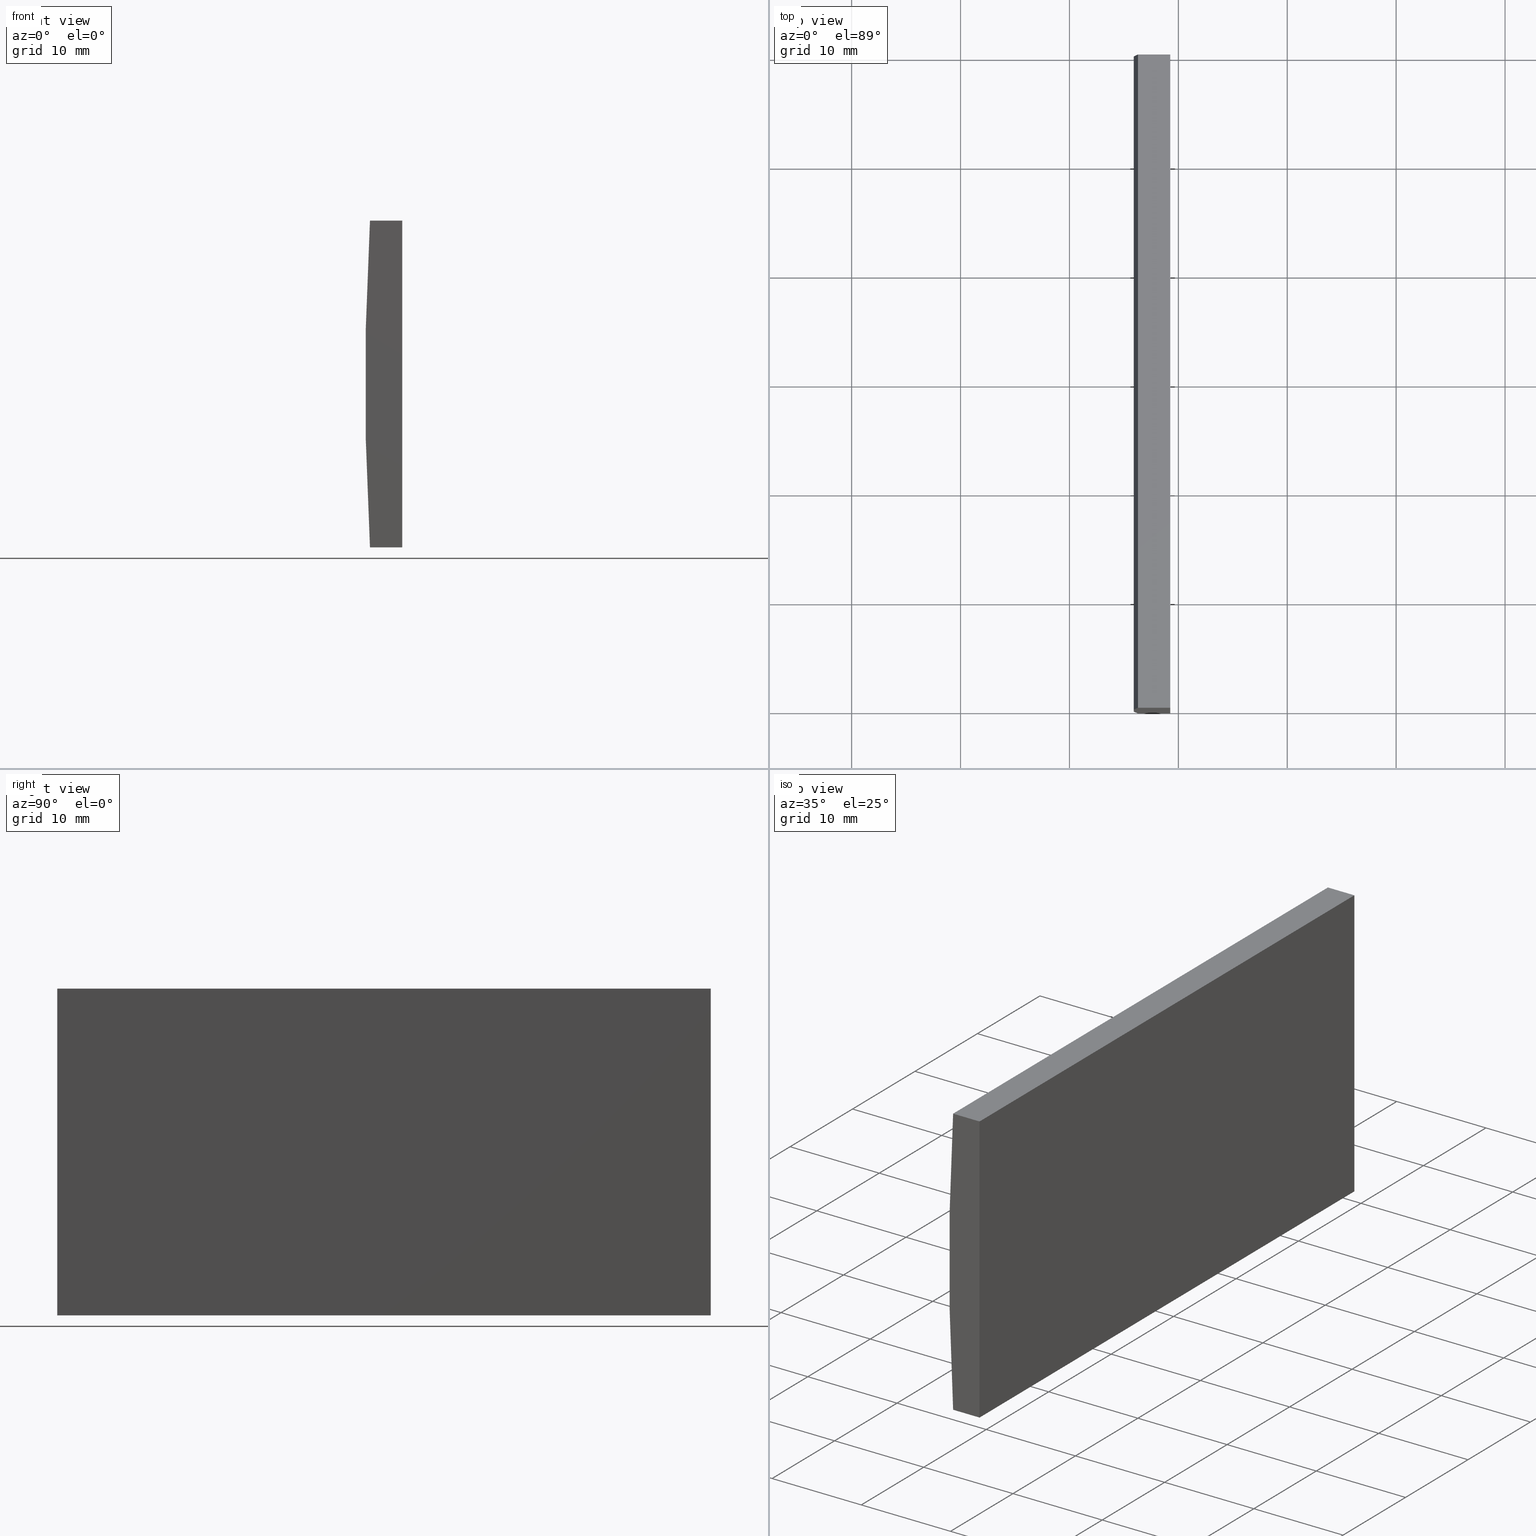
[diagram: canonical four-view strip — front | top / right | iso, engineering-drawing reading convention]
A machine part, canonical four-view strip (front | top / right | iso — engineering-drawing reading convention). The complete STEP part file that produces these views, byte-faithful:
ISO-10303-21;
HEADER;
FILE_DESCRIPTION (( 'STEP AP214' ),
    '1' );
FILE_NAME ('155064.STEP',
    '2019-06-18T08:31:54',
    ( 'user' ),
    ( '΢���й�' ),
    'SwSTEP 2.0',
    'SolidWorks 2016',
    '' );
FILE_SCHEMA (( 'AUTOMOTIVE_DESIGN' ));
ENDSEC;

DATA;
#1 = VERTEX_POINT ( 'NONE', #164 ) ;
#2 = EDGE_LOOP ( 'NONE', ( #96, #19, #172, #28 ) ) ;
#3 = VECTOR ( 'NONE', #130, 1000.000000000000000 ) ;
#4 = VERTEX_POINT ( 'NONE', #147 ) ;
#5 = CARTESIAN_POINT ( 'NONE',  ( -250.7447956651487300, 60.00000000000000000, 15.00000000000000000 ) ) ;
#6 = ORIENTED_EDGE ( 'NONE', *, *, #203, .F. ) ;
#7 = CARTESIAN_POINT ( 'NONE',  ( 4.355204334851265500, 0.0000000000000000000, 4.286263797015675000E-017 ) ) ;
#8 = EDGE_CURVE ( 'NONE', #48, #4, #73, .T. ) ;
#9 = SURFACE_STYLE_USAGE ( .BOTH. , #115 ) ;
#10 = PRODUCT ( '155064', '155064', '', ( #33 ) ) ;
#11 = FACE_OUTER_BOUND ( 'NONE', #2, .T. ) ;
#12 = DIRECTION ( 'NONE',  ( 0.0000000000000000000, 1.000000000000000000, 0.0000000000000000000 ) ) ;
#13 = VECTOR ( 'NONE', #27, 1000.000000000000000 ) ;
#14 = ORIENTED_EDGE ( 'NONE', *, *, #38, .F. ) ;
#15 = PRESENTATION_LAYER_ASSIGNMENT (  '', '', ( #93 ) ) ;
#16 = VECTOR ( 'NONE', #125, 1000.000000000000000 ) ;
#17 = EDGE_CURVE ( 'NONE', #48, #24, #134, .T. ) ;
#18 = DIRECTION ( 'NONE',  ( -0.0000000000000000000, -1.000000000000000000, -0.0000000000000000000 ) ) ;
#19 = ORIENTED_EDGE ( 'NONE', *, *, #203, .T. ) ;
#20 = PLANE ( 'NONE',  #180 ) ;
#21 = FACE_OUTER_BOUND ( 'NONE', #62, .T. ) ;
#22 = MANIFOLD_SOLID_BREP ( '͹̨-����1', #60 ) ;
#23 = FACE_OUTER_BOUND ( 'NONE', #72, .T. ) ;
#24 = VERTEX_POINT ( 'NONE', #161 ) ;
#25 = PRESENTATION_LAYER_ASSIGNMENT (  '', '', ( #89 ) ) ;
#26 = ORIENTED_EDGE ( 'NONE', *, *, #182, .F. ) ;
#27 = DIRECTION ( 'NONE',  ( -0.0000000000000000000, -1.000000000000000000, -0.0000000000000000000 ) ) ;
#28 = ORIENTED_EDGE ( 'NONE', *, *, #38, .T. ) ;
#29 = LINE ( 'NONE', #138, #144 ) ;
#30 = ORIENTED_EDGE ( 'NONE', *, *, #188, .T. ) ;
#31 = ADVANCED_FACE ( 'NONE', ( #23 ), #114, .F. ) ;
#32 = CARTESIAN_POINT ( 'NONE',  ( 4.355204334851265500, 0.0000000000000000000, 4.286263797015675000E-017 ) ) ;
#33 = PRODUCT_CONTEXT ( 'NONE', #201, 'mechanical' ) ;
#34 = DIRECTION ( 'NONE',  ( -0.0000000000000000000, -0.0000000000000000000, -1.000000000000000000 ) ) ;
#35 = APPLICATION_PROTOCOL_DEFINITION ( 'draft international standard', 'automotive_design', 1998, #201 ) ;
#36 = DIRECTION ( 'NONE',  ( -9.362871169859394600E-015, 0.0000000000000000000, 1.000000000000000000 ) ) ;
#37 = ORIENTED_EDGE ( 'NONE', *, *, #83, .F. ) ;
#38 = EDGE_CURVE ( 'NONE', #79, #48, #53, .T. ) ;
#39 = DIRECTION ( 'NONE',  ( 0.0000000000000000000, -0.0000000000000000000, 1.000000000000000000 ) ) ;
#40 = AXIS2_PLACEMENT_3D ( 'NONE', #77, #36, #157 ) ;
#41 = EDGE_CURVE ( 'NONE', #169, #85, #168, .T. ) ;
#42 = EDGE_LOOP ( 'NONE', ( #75, #105, #141, #84 ) ) ;
#43 = ORIENTED_EDGE ( 'NONE', *, *, #182, .T. ) ;
#44 = CARTESIAN_POINT ( 'NONE',  ( -253.7092256046504700, 60.00000000000000000, -15.00000000000000000 ) ) ;
#45 = ORIENTED_EDGE ( 'NONE', *, *, #17, .T. ) ;
#46 = ADVANCED_FACE ( 'NONE', ( #50 ), #162, .F. ) ;
#47 = VECTOR ( 'NONE', #146, 1000.000000000000000 ) ;
#48 = VERTEX_POINT ( 'NONE', #44 ) ;
#49 = DIRECTION ( 'NONE',  ( -0.0000000000000000000, -1.000000000000000000, -0.0000000000000000000 ) ) ;
#50 = FACE_OUTER_BOUND ( 'NONE', #88, .T. ) ;
#51 = DIRECTION ( 'NONE',  ( 1.000000000000000000, 0.0000000000000000000, 0.0000000000000000000 ) ) ;
#52 =( GEOMETRIC_REPRESENTATION_CONTEXT ( 3 ) GLOBAL_UNCERTAINTY_ASSIGNED_CONTEXT ( ( #81 ) ) GLOBAL_UNIT_ASSIGNED_CONTEXT ( ( #86, #98, #99 ) ) REPRESENTATION_CONTEXT ( 'NONE', 'WORKASPACE' ) );
#53 = LINE ( 'NONE', #80, #3 ) ;
#54 = FILL_AREA_STYLE ('',( #66 ) ) ;
#55 = DIRECTION ( 'NONE',  ( 1.000000000000000000, 0.0000000000000000000, 0.0000000000000000000 ) ) ;
#56 = VECTOR ( 'NONE', #192, 1000.000000000000000 ) ;
#57 = DIRECTION ( 'NONE',  ( 0.0000000000000000000, -0.0000000000000000000, 1.000000000000000000 ) ) ;
#58 = DIRECTION ( 'NONE',  ( 0.0000000000000000000, 0.0000000000000000000, 1.000000000000000000 ) ) ;
#59 = ADVANCED_BREP_SHAPE_REPRESENTATION ( '155064', ( #22, #200 ), #175 ) ;
#60 = CLOSED_SHELL ( 'NONE', ( #196, #31, #153, #46, #181, #140 ) ) ;
#61 = ORIENTED_EDGE ( 'NONE', *, *, #17, .F. ) ;
#62 = EDGE_LOOP ( 'NONE', ( #199, #37, #76, #43 ) ) ;
#63 = PRODUCT_DEFINITION_CONTEXT ( 'detailed design', #197, 'design' ) ;
#64 = LINE ( 'NONE', #70, #47 ) ;
#65 = CARTESIAN_POINT ( 'NONE',  ( -250.7447956651487300, 0.0000000000000000000, 15.00000000000000000 ) ) ;
#66 = FILL_AREA_STYLE_COLOUR ( '', #179 ) ;
#67 = LINE ( 'NONE', #166, #167 ) ;
#68 = ORIENTED_EDGE ( 'NONE', *, *, #124, .T. ) ;
#69 = CARTESIAN_POINT ( 'NONE',  ( -250.7447956651487300, 60.00000000000000000, -14.99999999999997200 ) ) ;
#70 = CARTESIAN_POINT ( 'NONE',  ( -250.7447956651487300, 60.00000000000000000, -14.99999999999997200 ) ) ;
#71 = DIRECTION ( 'NONE',  ( 0.0000000000000000000, 1.000000000000000000, 0.0000000000000000000 ) ) ;
#72 = EDGE_LOOP ( 'NONE', ( #187, #26, #6, #91 ) ) ;
#73 = CIRCLE ( 'NONE', #118, 258.5000000000000000 ) ;
#74 = PLANE ( 'NONE',  #106 ) ;
#75 = ORIENTED_EDGE ( 'NONE', *, *, #188, .F. ) ;
#76 = ORIENTED_EDGE ( 'NONE', *, *, #158, .F. ) ;
#77 = CARTESIAN_POINT ( 'NONE',  ( -253.7092256046504700, 60.00000000000000000, -15.00000000000000000 ) ) ;
#78 = CIRCLE ( 'NONE', #193, 258.5000000000000000 ) ;
#79 = VERTEX_POINT ( 'NONE', #69 ) ;
#80 = CARTESIAN_POINT ( 'NONE',  ( -253.7092256046504700, 60.00000000000000000, -15.00000000000000000 ) ) ;
#81 = UNCERTAINTY_MEASURE_WITH_UNIT (LENGTH_MEASURE( 1.000000000000000100E-005 ), #86, 'distance_accuracy_value', 'NONE');
#82 = CARTESIAN_POINT ( 'NONE',  ( -253.7092256046504700, 60.00000000000000000, 15.00000000000000000 ) ) ;
#83 = EDGE_CURVE ( 'NONE', #79, #1, #64, .T. ) ;
#84 = ORIENTED_EDGE ( 'NONE', *, *, #41, .F. ) ;
#85 = VERTEX_POINT ( 'NONE', #65 ) ;
#86 =( LENGTH_UNIT ( ) NAMED_UNIT ( * ) SI_UNIT ( .MILLI., .METRE. ) );
#87 = CARTESIAN_POINT ( 'NONE',  ( -250.7447956651487300, 0.0000000000000000000, -14.99999999999997200 ) ) ;
#88 = EDGE_LOOP ( 'NONE', ( #68, #61, #14, #183 ) ) ;
#89 = STYLED_ITEM ( 'NONE', ( #142 ), #59 ) ;
#90 = EDGE_CURVE ( 'NONE', #4, #169, #67, .T. ) ;
#91 = ORIENTED_EDGE ( 'NONE', *, *, #90, .T. ) ;
#92 =( GEOMETRIC_REPRESENTATION_CONTEXT ( 3 ) GLOBAL_UNCERTAINTY_ASSIGNED_CONTEXT ( ( #195 ) ) GLOBAL_UNIT_ASSIGNED_CONTEXT ( ( #123, #129, #113 ) ) REPRESENTATION_CONTEXT ( 'NONE', 'WORKASPACE' ) );
#93 = STYLED_ITEM ( 'NONE', ( #151 ), #22 ) ;
#94 = FACE_OUTER_BOUND ( 'NONE', #42, .T. ) ;
#95 = MECHANICAL_DESIGN_GEOMETRIC_PRESENTATION_REPRESENTATION (  '', ( #93 ), #92 ) ;
#96 = ORIENTED_EDGE ( 'NONE', *, *, #8, .T. ) ;
#97 = DIRECTION ( 'NONE',  ( -1.000000000000000000, 0.0000000000000000000, -0.0000000000000000000 ) ) ;
#98 =( NAMED_UNIT ( * ) PLANE_ANGLE_UNIT ( ) SI_UNIT ( $, .RADIAN. ) );
#99 =( NAMED_UNIT ( * ) SI_UNIT ( $, .STERADIAN. ) SOLID_ANGLE_UNIT ( ) );
#100 = CARTESIAN_POINT ( 'NONE',  ( 4.355204334851265500, 60.00000000000000000, 4.286263797015675000E-017 ) ) ;
#101 = CARTESIAN_POINT ( 'NONE',  ( -250.7447956651487300, 60.00000000000000000, 15.00000000000000000 ) ) ;
#102 = CARTESIAN_POINT ( 'NONE',  ( -253.7092256046504700, 0.0000000000000000000, 15.00000000000000000 ) ) ;
#103 = CARTESIAN_POINT ( 'NONE',  ( -253.7092256046504700, 60.00000000000000000, -15.00000000000000000 ) ) ;
#104 = ORIENTED_EDGE ( 'NONE', *, *, #90, .F. ) ;
#105 = ORIENTED_EDGE ( 'NONE', *, *, #124, .F. ) ;
#106 = AXIS2_PLACEMENT_3D ( 'NONE', #135, #71, #57 ) ;
#107 = CARTESIAN_POINT ( 'NONE',  ( -253.7092256046504700, 0.0000000000000000000, 15.00000000000000000 ) ) ;
#108 = DIRECTION ( 'NONE',  ( 0.0000000000000000000, 1.000000000000000000, 0.0000000000000000000 ) ) ;
#109 = DIRECTION ( 'NONE',  ( 0.0000000000000000000, 0.0000000000000000000, -1.000000000000000000 ) ) ;
#110 = DIRECTION ( 'NONE',  ( 0.0000000000000000000, 0.0000000000000000000, 1.000000000000000000 ) ) ;
#111 = VERTEX_POINT ( 'NONE', #101 ) ;
#112 = PRODUCT_DEFINITION_FORMATION_WITH_SPECIFIED_SOURCE ( '�κ�', '', #10, .NOT_KNOWN. ) ;
#113 =( NAMED_UNIT ( * ) SI_UNIT ( $, .STERADIAN. ) SOLID_ANGLE_UNIT ( ) );
#114 = PLANE ( 'NONE',  #159 ) ;
#115 = SURFACE_SIDE_STYLE ('',( #163 ) ) ;
#116 = SHAPE_DEFINITION_REPRESENTATION ( #121, #59 ) ;
#117 = SURFACE_SIDE_STYLE ('',( #133 ) ) ;
#118 = AXIS2_PLACEMENT_3D ( 'NONE', #154, #145, #149 ) ;
#119 = SURFACE_STYLE_USAGE ( .BOTH. , #117 ) ;
#120 = CARTESIAN_POINT ( 'NONE',  ( -253.7092256046504700, 0.0000000000000000000, -15.00000000000000000 ) ) ;
#121 = PRODUCT_DEFINITION_SHAPE ( 'NONE', 'NONE',  #131 ) ;
#122 = LINE ( 'NONE', #87, #56 ) ;
#123 =( LENGTH_UNIT ( ) NAMED_UNIT ( * ) SI_UNIT ( .MILLI., .METRE. ) );
#124 = EDGE_CURVE ( 'NONE', #1, #24, #178, .T. ) ;
#125 = DIRECTION ( 'NONE',  ( -1.000000000000000000, -0.0000000000000000000, -9.362871169859394600E-015 ) ) ;
#126 = UNCERTAINTY_MEASURE_WITH_UNIT (LENGTH_MEASURE( 1.000000000000000100E-005 ), #176, 'distance_accuracy_value', 'NONE');
#127 = VECTOR ( 'NONE', #174, 1000.000000000000000 ) ;
#128 = AXIS2_PLACEMENT_3D ( 'NONE', #139, #136, #156 ) ;
#129 =( NAMED_UNIT ( * ) PLANE_ANGLE_UNIT ( ) SI_UNIT ( $, .RADIAN. ) );
#130 = DIRECTION ( 'NONE',  ( -1.000000000000000000, -0.0000000000000000000, -9.362871169859394600E-015 ) ) ;
#131 = PRODUCT_DEFINITION ( 'δ֪', '', #112, #63 ) ;
#132 = PLANE ( 'NONE',  #128 ) ;
#133 = SURFACE_STYLE_FILL_AREA ( #143 ) ;
#134 = LINE ( 'NONE', #103, #13 ) ;
#135 = CARTESIAN_POINT ( 'NONE',  ( 4.355204334851265500, 60.00000000000000000, 4.286263797015675000E-017 ) ) ;
#136 = DIRECTION ( 'NONE',  ( -1.000000000000000000, 0.0000000000000000000, 0.0000000000000000000 ) ) ;
#137 = FILL_AREA_STYLE_COLOUR ( '', #189 ) ;
#138 = CARTESIAN_POINT ( 'NONE',  ( -250.7447956651487300, 60.00000000000000000, -14.99999999999997200 ) ) ;
#139 = CARTESIAN_POINT ( 'NONE',  ( -250.7447956651487300, 60.00000000000000000, -14.99999999999997200 ) ) ;
#140 = ADVANCED_FACE ( 'NONE', ( #94 ), #20, .F. ) ;
#141 = ORIENTED_EDGE ( 'NONE', *, *, #160, .F. ) ;
#142 = PRESENTATION_STYLE_ASSIGNMENT (( #9 ) ) ;
#143 = FILL_AREA_STYLE ('',( #137 ) ) ;
#144 = VECTOR ( 'NONE', #34, 1000.000000000000000 ) ;
#145 = DIRECTION ( 'NONE',  ( 0.0000000000000000000, 1.000000000000000000, 0.0000000000000000000 ) ) ;
#146 = DIRECTION ( 'NONE',  ( -0.0000000000000000000, -1.000000000000000000, -0.0000000000000000000 ) ) ;
#147 = CARTESIAN_POINT ( 'NONE',  ( -253.7092256046504700, 60.00000000000000000, 15.00000000000000000 ) ) ;
#148 = CARTESIAN_POINT ( 'NONE',  ( -253.7092256046504700, 60.00000000000000000, 15.00000000000000000 ) ) ;
#149 = DIRECTION ( 'NONE',  ( 0.0000000000000000000, 0.0000000000000000000, 1.000000000000000000 ) ) ;
#150 = AXIS2_PLACEMENT_3D ( 'NONE', #100, #18, #173 ) ;
#151 = PRESENTATION_STYLE_ASSIGNMENT (( #119 ) ) ;
#152 = EDGE_LOOP ( 'NONE', ( #30, #104, #202, #45 ) ) ;
#153 = ADVANCED_FACE ( 'NONE', ( #21 ), #132, .F. ) ;
#154 = CARTESIAN_POINT ( 'NONE',  ( 4.355204334851265500, 60.00000000000000000, 4.286263797015675000E-017 ) ) ;
#155 = CARTESIAN_POINT ( 'NONE',  ( 0.0000000000000000000, 0.0000000000000000000, 0.0000000000000000000 ) ) ;
#156 = DIRECTION ( 'NONE',  ( 0.0000000000000000000, 0.0000000000000000000, 1.000000000000000000 ) ) ;
#157 = DIRECTION ( 'NONE',  ( 1.000000000000000000, 0.0000000000000000000, 9.362871169859394600E-015 ) ) ;
#158 = EDGE_CURVE ( 'NONE', #111, #79, #29, .T. ) ;
#159 = AXIS2_PLACEMENT_3D ( 'NONE', #148, #109, #97 ) ;
#160 = EDGE_CURVE ( 'NONE', #85, #1, #122, .T. ) ;
#161 = CARTESIAN_POINT ( 'NONE',  ( -253.7092256046504700, 0.0000000000000000000, -15.00000000000000000 ) ) ;
#162 = PLANE ( 'NONE',  #40 ) ;
#163 = SURFACE_STYLE_FILL_AREA ( #54 ) ;
#164 = CARTESIAN_POINT ( 'NONE',  ( -250.7447956651487300, 0.0000000000000000000, -14.99999999999997200 ) ) ;
#165 = VECTOR ( 'NONE', #55, 1000.000000000000000 ) ;
#166 = CARTESIAN_POINT ( 'NONE',  ( -253.7092256046504700, 60.00000000000000000, 15.00000000000000000 ) ) ;
#167 = VECTOR ( 'NONE', #49, 1000.000000000000000 ) ;
#168 = LINE ( 'NONE', #102, #165 ) ;
#169 = VERTEX_POINT ( 'NONE', #107 ) ;
#170 = MECHANICAL_DESIGN_GEOMETRIC_PRESENTATION_REPRESENTATION (  '', ( #89 ), #52 ) ;
#171 = APPLICATION_PROTOCOL_DEFINITION ( 'draft international standard', 'automotive_design', 1998, #197 ) ;
#172 = ORIENTED_EDGE ( 'NONE', *, *, #158, .T. ) ;
#173 = DIRECTION ( 'NONE',  ( 0.0000000000000000000, 0.0000000000000000000, -1.000000000000000000 ) ) ;
#174 = DIRECTION ( 'NONE',  ( -0.0000000000000000000, -1.000000000000000000, -0.0000000000000000000 ) ) ;
#175 =( GEOMETRIC_REPRESENTATION_CONTEXT ( 3 ) GLOBAL_UNCERTAINTY_ASSIGNED_CONTEXT ( ( #126 ) ) GLOBAL_UNIT_ASSIGNED_CONTEXT ( ( #176, #177, #194 ) ) REPRESENTATION_CONTEXT ( 'NONE', 'WORKASPACE' ) );
#176 =( LENGTH_UNIT ( ) NAMED_UNIT ( * ) SI_UNIT ( .MILLI., .METRE. ) );
#177 =( NAMED_UNIT ( * ) PLANE_ANGLE_UNIT ( ) SI_UNIT ( $, .RADIAN. ) );
#178 = LINE ( 'NONE', #120, #16 ) ;
#179 = COLOUR_RGB ( '',1.000000000000000000, 1.000000000000000000, 1.000000000000000000 ) ;
#180 = AXIS2_PLACEMENT_3D ( 'NONE', #7, #12, #39 ) ;
#181 = ADVANCED_FACE ( 'NONE', ( #11 ), #74, .T. ) ;
#182 = EDGE_CURVE ( 'NONE', #111, #85, #190, .T. ) ;
#183 = ORIENTED_EDGE ( 'NONE', *, *, #83, .T. ) ;
#184 = CYLINDRICAL_SURFACE ( 'NONE', #150, 258.5000000000000000 ) ;
#185 = LINE ( 'NONE', #82, #191 ) ;
#186 = PRODUCT_RELATED_PRODUCT_CATEGORY ( 'part', '', ( #10 ) ) ;
#187 = ORIENTED_EDGE ( 'NONE', *, *, #41, .T. ) ;
#188 = EDGE_CURVE ( 'NONE', #24, #169, #78, .T. ) ;
#189 = COLOUR_RGB ( '',1.000000000000000000, 1.000000000000000000, 1.000000000000000000 ) ;
#190 = LINE ( 'NONE', #5, #127 ) ;
#191 = VECTOR ( 'NONE', #51, 1000.000000000000000 ) ;
#192 = DIRECTION ( 'NONE',  ( -0.0000000000000000000, -0.0000000000000000000, -1.000000000000000000 ) ) ;
#193 = AXIS2_PLACEMENT_3D ( 'NONE', #32, #108, #110 ) ;
#194 =( NAMED_UNIT ( * ) SI_UNIT ( $, .STERADIAN. ) SOLID_ANGLE_UNIT ( ) );
#195 = UNCERTAINTY_MEASURE_WITH_UNIT (LENGTH_MEASURE( 1.000000000000000100E-005 ), #123, 'distance_accuracy_value', 'NONE');
#196 = ADVANCED_FACE ( 'NONE', ( #204 ), #184, .T. ) ;
#197 = APPLICATION_CONTEXT ( 'automotive_design' ) ;
#198 = DIRECTION ( 'NONE',  ( 1.000000000000000000, 0.0000000000000000000, 0.0000000000000000000 ) ) ;
#199 = ORIENTED_EDGE ( 'NONE', *, *, #160, .T. ) ;
#200 = AXIS2_PLACEMENT_3D ( 'NONE', #155, #58, #198 ) ;
#201 = APPLICATION_CONTEXT ( 'automotive_design' ) ;
#202 = ORIENTED_EDGE ( 'NONE', *, *, #8, .F. ) ;
#203 = EDGE_CURVE ( 'NONE', #4, #111, #185, .T. ) ;
#204 = FACE_OUTER_BOUND ( 'NONE', #152, .T. ) ;
ENDSEC;
END-ISO-10303-21;
